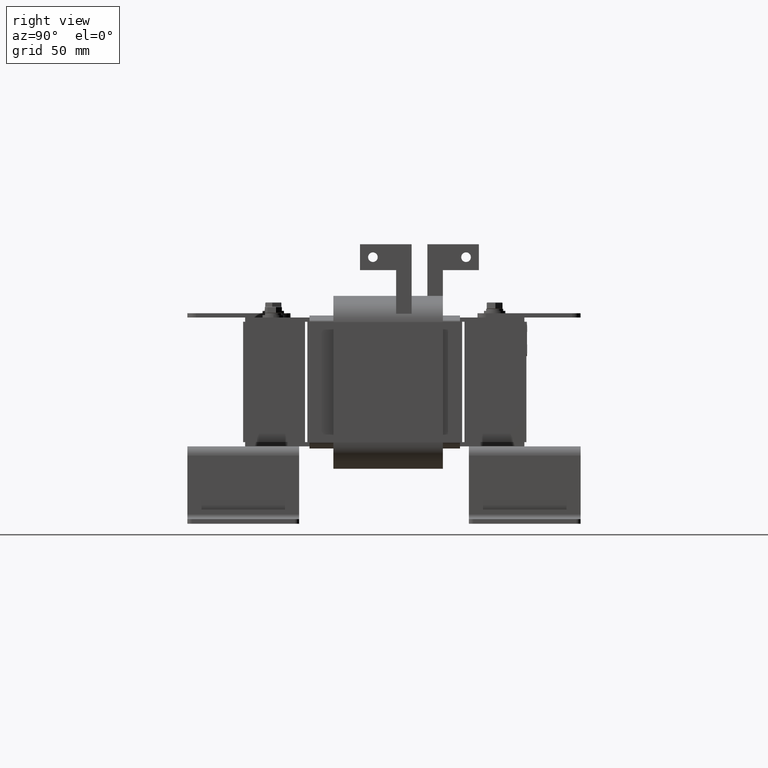
[diagram: clean part render]
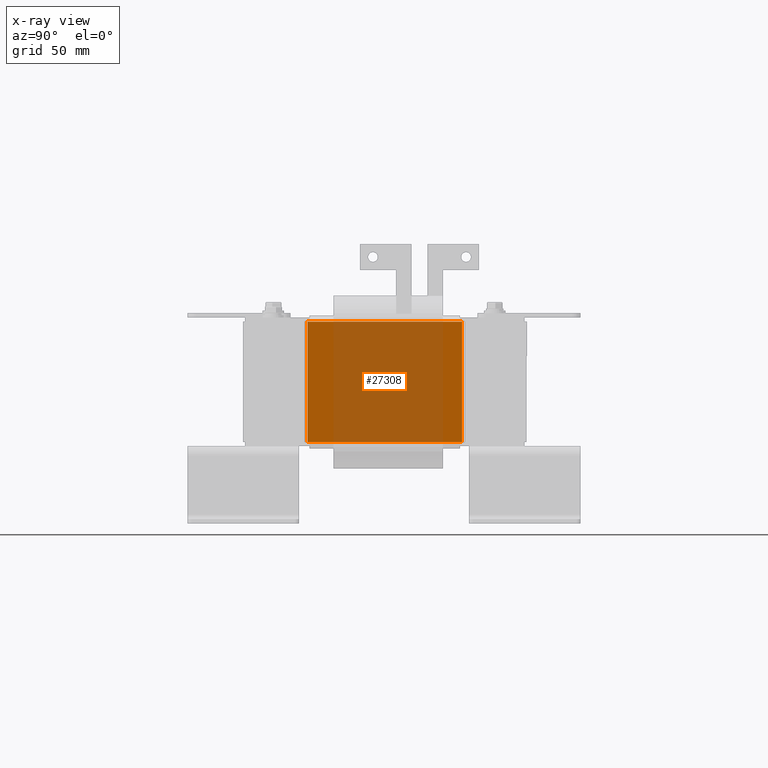
[diagram: x-ray — body ghosted, one internal face saturated and labeled with its STEP entity id]
A machine part, right view, then the same camera in x-ray: the body is ghosted and one INTERNAL B-rep face — a face not visible from any outside direction — is saturated and labeled: STEP entity #27308.
In plain terms, the highlighted planar face has unit normal (-1, 0, -0).
Its self-contained STEP definition (entity closure, byte-faithful):
#1353=PLANE('',#29199);
#2442=FACE_OUTER_BOUND('',#4013,.T.);
#4013=EDGE_LOOP('',(#21306,#21307,#21308,#21309));
#6002=LINE('',#44556,#8721);
#6003=LINE('',#44558,#8722);
#6004=LINE('',#44560,#8723);
#6005=LINE('',#44561,#8724);
#8721=VECTOR('',#33227,0.393700787401575);
#8722=VECTOR('',#33228,0.393700787401575);
#8723=VECTOR('',#33229,0.393700787401575);
#8724=VECTOR('',#33230,0.393700787401575);
#12387=VERTEX_POINT('',#44554);
#12388=VERTEX_POINT('',#44555);
#12389=VERTEX_POINT('',#44557);
#12390=VERTEX_POINT('',#44559);
#15632=EDGE_CURVE('',#12387,#12388,#6002,.T.);
#15633=EDGE_CURVE('',#12389,#12388,#6003,.T.);
#15634=EDGE_CURVE('',#12389,#12390,#6004,.T.);
#15635=EDGE_CURVE('',#12390,#12387,#6005,.T.);
#21306=ORIENTED_EDGE('',*,*,#15632,.T.);
#21307=ORIENTED_EDGE('',*,*,#15633,.F.);
#21308=ORIENTED_EDGE('',*,*,#15634,.T.);
#21309=ORIENTED_EDGE('',*,*,#15635,.T.);
#27308=ADVANCED_FACE('',(#2442),#1353,.T.);
#29199=AXIS2_PLACEMENT_3D('',#44553,#33225,#33226);
#33225=DIRECTION('center_axis',(-1.,-2.39849028365385E-16,0.));
#33226=DIRECTION('ref_axis',(0.,0.,1.));
#33227=DIRECTION('',(-2.39849028365385E-16,1.,0.));
#33228=DIRECTION('',(0.,0.,1.));
#33229=DIRECTION('',(2.39849028365385E-16,-1.,0.));
#33230=DIRECTION('',(0.,0.,1.));
#44553=CARTESIAN_POINT('Origin',(0.,0.,0.));
#44554=CARTESIAN_POINT('',(0.,0.,4.5));
#44555=CARTESIAN_POINT('',(-8.39471599278848E-16,3.5,4.5));
#44556=CARTESIAN_POINT('',(-8.39471599278848E-16,3.5,4.5));
#44557=CARTESIAN_POINT('',(-8.39471599278848E-16,3.5,0.));
#44558=CARTESIAN_POINT('',(-8.39471599278848E-16,3.5,0.));
#44559=CARTESIAN_POINT('',(0.,0.,0.));
#44560=CARTESIAN_POINT('',(-8.39471599278848E-16,3.5,0.));
#44561=CARTESIAN_POINT('',(0.,0.,0.));